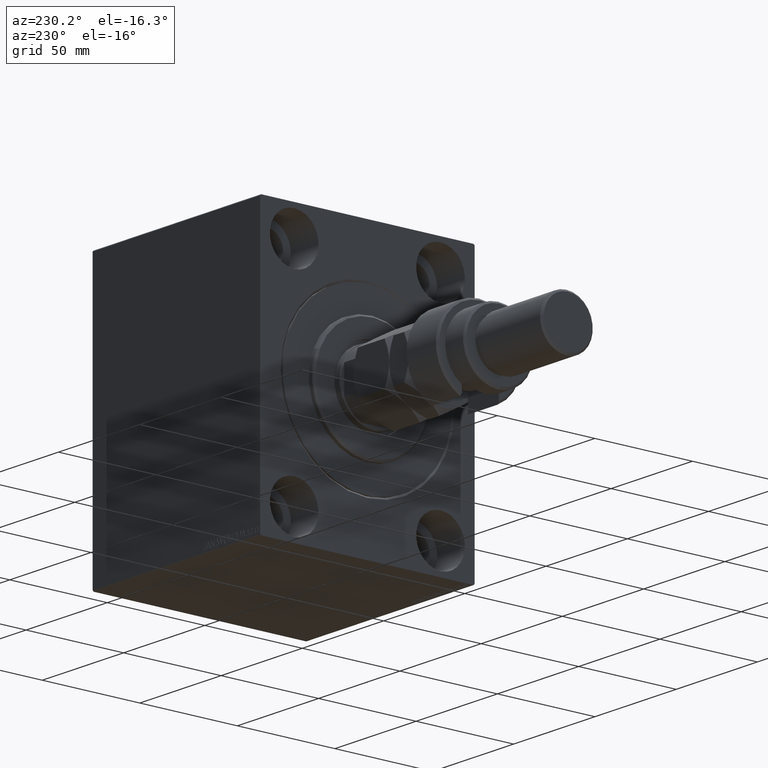
[diagram: clean part render]
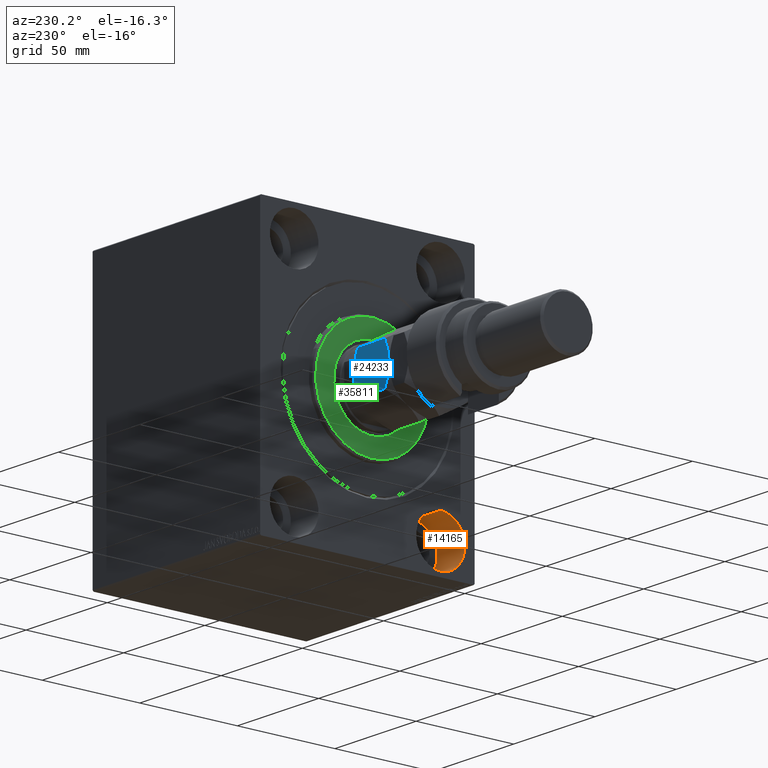
[diagram: same view with three faces highlighted in distinct colors, each labeled with its STEP entity id]
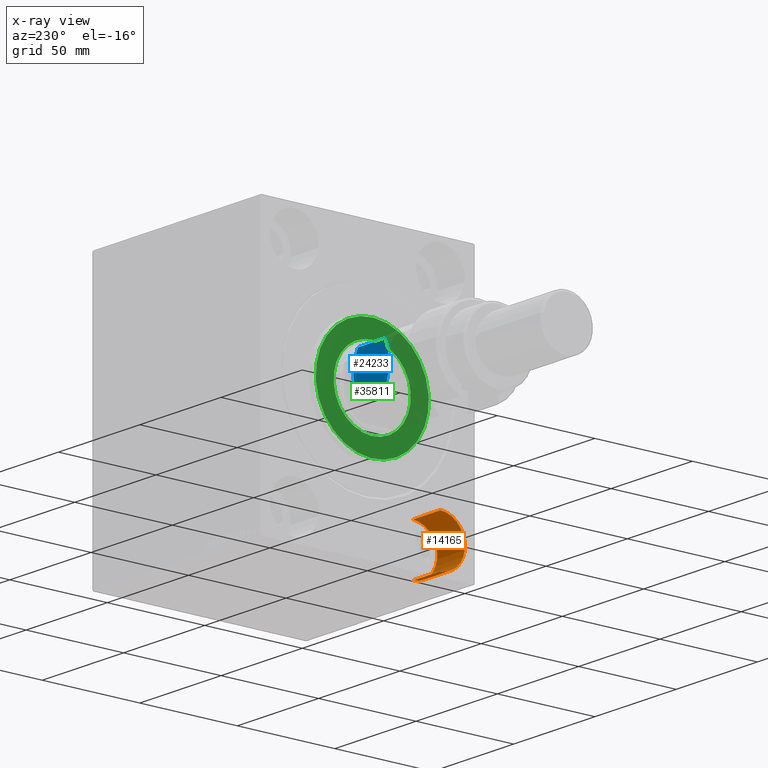
[diagram: x-ray of the same camera — body ghosted, the three highlighted faces saturated]
A machine part, auxiliary view with three faces highlighted in distinct colors.
The next image is the same camera in x-ray (body ghosted, the three faces saturated) — at least one of them is partly hidden behind the body in this view.
Their STEP definitions:

[orange] entity #14165 — the highlighted cylindrical surface (edge-blend (fillet) strip) has radius 12.5 mm, axis along (-1, -0, -0).
#2295 = LINE ( 'NONE', #2757, #7751 ) ;
#2677 = CARTESIAN_POINT ( 'NONE',  ( 0.000000000000000000, -37.50000000000002132, -42.49999999999999289 ) ) ;
#2757 = CARTESIAN_POINT ( 'NONE',  ( 17.00000000000000000, -37.50000000000002132, -42.49999999999999289 ) ) ;
#3594 = DIRECTION ( 'NONE',  ( 0.000000000000000000, 0.000000000000000000, 1.000000000000000000 ) ) ;
#4704 = LINE ( 'NONE', #29709, #22898 ) ;
#5178 = VERTEX_POINT ( 'NONE', #2677 ) ;
#7134 = CARTESIAN_POINT ( 'NONE',  ( 17.00000000000000000, -37.50000000000002132, -54.99999999999999289 ) ) ;
#7530 = CIRCLE ( 'NONE', #18098, 12.49999999999999645 ) ;
#7751 = VECTOR ( 'NONE', #9391, 1000.000000000000000 ) ;
#7786 = ORIENTED_EDGE ( 'NONE', *, *, #28862, .T. ) ;
#7905 = ORIENTED_EDGE ( 'NONE', *, *, #15969, .T. ) ;
#9391 = DIRECTION ( 'NONE',  ( -1.000000000000000000, -0.000000000000000000, -0.000000000000000000 ) ) ;
#12006 = DIRECTION ( 'NONE',  ( -1.000000000000000000, -0.000000000000000000, -0.000000000000000000 ) ) ;
#14165 = ADVANCED_FACE ( 'NONE', ( #24376 ), #24839, .F. ) ;
#14997 = ORIENTED_EDGE ( 'NONE', *, *, #43908, .F. ) ;
#15825 = AXIS2_PLACEMENT_3D ( 'NONE', #7134, #28611, #3594 ) ;
#15907 = DIRECTION ( 'NONE',  ( -1.000000000000000000, 0.000000000000000000, 0.000000000000000000 ) ) ;
#15928 = ORIENTED_EDGE ( 'NONE', *, *, #22818, .F. ) ;
#15969 = EDGE_CURVE ( 'NONE', #37162, #5178, #7530, .T. ) ;
#18098 = AXIS2_PLACEMENT_3D ( 'NONE', #19240, #23258, #29617 ) ;
#18181 = VERTEX_POINT ( 'NONE', #28580 ) ;
#18711 = EDGE_LOOP ( 'NONE', ( #14997, #7786, #7905, #15928 ) ) ;
#19240 = CARTESIAN_POINT ( 'NONE',  ( 0.000000000000000000, -37.50000000000002132, -54.99999999999999289 ) ) ;
#22818 = EDGE_CURVE ( 'NONE', #37339, #5178, #2295, .T. ) ;
#22898 = VECTOR ( 'NONE', #12006, 1000.000000000000000 ) ;
#23258 = DIRECTION ( 'NONE',  ( -1.000000000000000000, 0.000000000000000000, 0.000000000000000000 ) ) ;
#24376 = FACE_OUTER_BOUND ( 'NONE', #18711, .T. ) ;
#24839 = CYLINDRICAL_SURFACE ( 'NONE', #15825, 12.49999999999999645 ) ;
#28580 = CARTESIAN_POINT ( 'NONE',  ( 17.00000000000000000, -37.50000000000002132, -67.49999999999998579 ) ) ;
#28611 = DIRECTION ( 'NONE',  ( -1.000000000000000000, -0.000000000000000000, -0.000000000000000000 ) ) ;
#28862 = EDGE_CURVE ( 'NONE', #18181, #37162, #4704, .T. ) ;
#29617 = DIRECTION ( 'NONE',  ( 0.000000000000000000, 0.000000000000000000, 1.000000000000000000 ) ) ;
#29709 = CARTESIAN_POINT ( 'NONE',  ( 17.00000000000000000, -37.50000000000002132, -67.49999999999998579 ) ) ;
#29844 = CIRCLE ( 'NONE', #40398, 12.49999999999999645 ) ;
#30284 = DIRECTION ( 'NONE',  ( 0.000000000000000000, 0.000000000000000000, 1.000000000000000000 ) ) ;
#35439 = CARTESIAN_POINT ( 'NONE',  ( 0.000000000000000000, -37.50000000000002132, -67.49999999999998579 ) ) ;
#37162 = VERTEX_POINT ( 'NONE', #35439 ) ;
#37339 = VERTEX_POINT ( 'NONE', #39333 ) ;
#37388 = CARTESIAN_POINT ( 'NONE',  ( 17.00000000000000000, -37.50000000000002132, -54.99999999999999289 ) ) ;
#39333 = CARTESIAN_POINT ( 'NONE',  ( 17.00000000000000000, -37.50000000000002132, -42.49999999999999289 ) ) ;
#40398 = AXIS2_PLACEMENT_3D ( 'NONE', #37388, #15907, #30284 ) ;
#43908 = EDGE_CURVE ( 'NONE', #18181, #37339, #29844, .T. ) ;

[blue] entity #24233 — the highlighted planar face has unit normal (0, -1, 0).
#28 = FACE_OUTER_BOUND ( 'NONE', #2676, .T. ) ;
#560 = B_SPLINE_CURVE_WITH_KNOTS ( 'NONE', 3,
 ( #5574, #36973, #33416, #29637, #15954, #16188, #44281, #4632, #44976, #40506 ),
 .UNSPECIFIED., .F., .F.,
 ( 4, 2, 2, 2, 4 ),
 ( 2.544307986804616605E-07, 0.005386537354063081207, 0.008079678815695278543, 0.009426249546511375477, 0.01077282027732747414 ),
 .UNSPECIFIED. ) ;
#1288 = CARTESIAN_POINT ( 'NONE',  ( -5.858009779716798704, 17.40248616759157940, 21.65943689774472247 ) ) ;
#1827 = LINE ( 'NONE', #37942, #46218 ) ;
#2676 = EDGE_LOOP ( 'NONE', ( #18403, #42342, #42533, #40770, #30169, #32653 ) ) ;
#3395 = B_SPLINE_CURVE_WITH_KNOTS ( 'NONE', 3,
 ( #39937, #21773, #22244, #21309, #33084, #39482 ),
 .UNSPECIFIED., .F., .F.,
 ( 4, 2, 4 ),
 ( 0.01077282027732746027, 0.01612137750481872772, 0.02146993473230999691 ),
 .UNSPECIFIED. ) ;
#4632 = CARTESIAN_POINT ( 'NONE',  ( -9.790461530629869458, 15.13208409062670334, 0.01733285647409164854 ) ) ;
#4845 = CARTESIAN_POINT ( 'NONE',  ( -2.854601888853811165, 19.13650452186756468, 20.72261692211012374 ) ) ;
#5079 = CARTESIAN_POINT ( 'NONE',  ( -8.209538469370123437, 16.04483044561310479, 21.98266714352590157 ) ) ;
#5574 = CARTESIAN_POINT ( 'NONE',  ( -18.00000000000000000, 10.39230484541327115, 2.784609690826521433 ) ) ;
#9338 = CARTESIAN_POINT ( 'NONE',  ( -5.895697476400516557, 17.38072716576608912, 0.2763959071215859042 ) ) ;
#9835 = VERTEX_POINT ( 'NONE', #17410 ) ;
#10038 = AXIS2_PLACEMENT_3D ( 'NONE', #39466, #32381, #43469 ) ;
#10051 = B_SPLINE_CURVE_WITH_KNOTS ( 'NONE', 3,
 ( #12383, #37413, #4845, #29852, #1288, #44489, #37645, #5079, #14995, #29386 ),
 .UNSPECIFIED., .F., .F.,
 ( 4, 2, 2, 2, 4 ),
 ( 2.544307986817554504E-07, 0.005386537354063073400, 0.008079678815695268135, 0.009426249546511363334, 0.01077282027732746027 ),
 .UNSPECIFIED. ) ;
#10420 = EDGE_CURVE ( 'NONE', #32142, #11438, #3395, .T. ) ;
#11438 = VERTEX_POINT ( 'NONE', #42690 ) ;
#12383 = CARTESIAN_POINT ( 'NONE',  ( -2.339913671058857151E-16, 20.78460969082652454, 19.21539030917348256 ) ) ;
#12677 = VERTEX_POINT ( 'NONE', #13608 ) ;
#13111 = CARTESIAN_POINT ( 'NONE',  ( -2.860715810337960185, 19.13297464765287614, 1.272574701504242345 ) ) ;
#13608 = CARTESIAN_POINT ( 'NONE',  ( -18.00000000000000000, 10.39230484541327115, 2.784609690826521433 ) ) ;
#14995 = CARTESIAN_POINT ( 'NONE',  ( -8.605874323383762459, 15.81600583360882162, 21.99999999999999645 ) ) ;
#15954 = CARTESIAN_POINT ( 'NONE',  ( -12.14199022028319419, 13.77442836864822340, 0.3405631022552705334 ) ) ;
#16182 = VECTOR ( 'NONE', #43563, 1000.000000000000000 ) ;
#16188 = CARTESIAN_POINT ( 'NONE',  ( -10.97671975407794953, 14.44719758599054771, 0.1387225990985785085 ) ) ;
#16423 = CARTESIAN_POINT ( 'NONE',  ( -8.999999999999991118, 15.58845726811989785, 0.000000000000000000 ) ) ;
#16880 = CARTESIAN_POINT ( 'NONE',  ( -1.065242688631141971E-15, 20.78460969082652454, 2.784609690826513440 ) ) ;
#17410 = CARTESIAN_POINT ( 'NONE',  ( -1.065242688631141971E-15, 20.78460969082652454, 2.784609690826513440 ) ) ;
#18403 = ORIENTED_EDGE ( 'NONE', *, *, #23875, .F. ) ;
#20630 = B_SPLINE_CURVE_WITH_KNOTS ( 'NONE', 3,
 ( #16423, #31035, #9338, #13111, #30806, #16880 ),
 .UNSPECIFIED., .F., .F.,
 ( 4, 2, 4 ),
 ( 0.01077282027732747414, 0.01612137750481873466, 0.02146993473230999344 ),
 .UNSPECIFIED. ) ;
#21309 = CARTESIAN_POINT ( 'NONE',  ( -15.13928418966203004, 12.04393988858690889, 20.72742529849574566 ) ) ;
#21773 = CARTESIAN_POINT ( 'NONE',  ( -10.56546083169953221, 14.68463803553235714, 21.99999999999998934 ) ) ;
#22244 = CARTESIAN_POINT ( 'NONE',  ( -12.10430252359947545, 13.79618737047371013, 21.72360409287842131 ) ) ;
#23875 = EDGE_CURVE ( 'NONE', #12677, #28819, #560, .T. ) ;
#24233 = ADVANCED_FACE ( 'NONE', ( #28 ), #39237, .F. ) ;
#27642 = VERTEX_POINT ( 'NONE', #28140 ) ;
#28125 = EDGE_CURVE ( 'NONE', #28819, #9835, #20630, .T. ) ;
#28140 = CARTESIAN_POINT ( 'NONE',  ( -2.339913671058857151E-16, 20.78460969082652454, 19.21539030917348256 ) ) ;
#28819 = VERTEX_POINT ( 'NONE', #46495 ) ;
#29162 = CARTESIAN_POINT ( 'NONE',  ( 0.000000000000000000, 20.78460969082652454, 22.00000000000000000 ) ) ;
#29386 = CARTESIAN_POINT ( 'NONE',  ( -8.999999999999991118, 15.58845726811989785, 22.00000000000000000 ) ) ;
#29397 = LINE ( 'NONE', #29162, #16182 ) ;
#29637 = CARTESIAN_POINT ( 'NONE',  ( -12.90267270303526814, 13.33524813246347840, 0.5370855558290131837 ) ) ;
#29852 = CARTESIAN_POINT ( 'NONE',  ( -5.097327296964721199, 17.84166640377631552, 21.46291444417098759 ) ) ;
#30169 = ORIENTED_EDGE ( 'NONE', *, *, #37588, .T. ) ;
#30806 = CARTESIAN_POINT ( 'NONE',  ( -1.409696000463985355, 19.97072132548310108, 1.970721325483047570 ) ) ;
#31035 = CARTESIAN_POINT ( 'NONE',  ( -7.434539168300451806, 16.49227650070744389, 2.835866307407396746E-15 ) ) ;
#32142 = VERTEX_POINT ( 'NONE', #44026 ) ;
#32381 = DIRECTION ( 'NONE',  ( 0.4999999999999996114, -0.8660254037844388186, 0.000000000000000000 ) ) ;
#32653 = ORIENTED_EDGE ( 'NONE', *, *, #28125, .F. ) ;
#33084 = CARTESIAN_POINT ( 'NONE',  ( -16.59030399953601176, 11.20619321075669284, 20.02927867451694155 ) ) ;
#33416 = CARTESIAN_POINT ( 'NONE',  ( -15.14539811114618217, 12.04041001437223279, 1.277383077889873819 ) ) ;
#34852 = DIRECTION ( 'NONE',  ( -0.000000000000000000, -0.000000000000000000, -1.000000000000000000 ) ) ;
#36973 = CARTESIAN_POINT ( 'NONE',  ( -16.58866960374794530, 11.20713682960488811, 1.969777706634902259 ) ) ;
#37291 = EDGE_CURVE ( 'NONE', #11438, #12677, #1827, .T. ) ;
#37413 = CARTESIAN_POINT ( 'NONE',  ( -1.411330396252047148, 19.96977770663490404, 20.03022229336509952 ) ) ;
#37588 = EDGE_CURVE ( 'NONE', #27642, #9835, #29397, .T. ) ;
#37645 = CARTESIAN_POINT ( 'NONE',  ( -7.415748492146450488, 16.50312530264321254, 21.91305310988183663 ) ) ;
#37942 = CARTESIAN_POINT ( 'NONE',  ( -18.00000000000000000, 10.39230484541327293, 22.00000000000000000 ) ) ;
#39237 = PLANE ( 'NONE',  #10038 ) ;
#39466 = CARTESIAN_POINT ( 'NONE',  ( 0.000000000000000000, 20.78460969082652454, 22.00000000000000000 ) ) ;
#39482 = CARTESIAN_POINT ( 'NONE',  ( -18.00000000000000000, 10.39230484541327293, 19.21539030917347546 ) ) ;
#39937 = CARTESIAN_POINT ( 'NONE',  ( -8.999999999999991118, 15.58845726811989785, 22.00000000000000000 ) ) ;
#40506 = CARTESIAN_POINT ( 'NONE',  ( -8.999999999999991118, 15.58845726811989785, 0.000000000000000000 ) ) ;
#40770 = ORIENTED_EDGE ( 'NONE', *, *, #43840, .F. ) ;
#42342 = ORIENTED_EDGE ( 'NONE', *, *, #37291, .F. ) ;
#42533 = ORIENTED_EDGE ( 'NONE', *, *, #10420, .F. ) ;
#42690 = CARTESIAN_POINT ( 'NONE',  ( -18.00000000000000000, 10.39230484541327293, 19.21539030917347546 ) ) ;
#43469 = DIRECTION ( 'NONE',  ( 0.8660254037844388186, 0.4999999999999996114, 0.000000000000000000 ) ) ;
#43563 = DIRECTION ( 'NONE',  ( -0.000000000000000000, -0.000000000000000000, -1.000000000000000000 ) ) ;
#43840 = EDGE_CURVE ( 'NONE', #27642, #32142, #10051, .T. ) ;
#44026 = CARTESIAN_POINT ( 'NONE',  ( -8.999999999999991118, 15.58845726811989785, 22.00000000000000000 ) ) ;
#44281 = CARTESIAN_POINT ( 'NONE',  ( -10.58425150785354241, 14.67378923359659559, 0.08694689011815655288 ) ) ;
#44489 = CARTESIAN_POINT ( 'NONE',  ( -7.023280245922044251, 16.72971695024925509, 21.86127740090141458 ) ) ;
#44976 = CARTESIAN_POINT ( 'NONE',  ( -9.394125676616230436, 15.36090870263097941, 2.570744994916802318E-15 ) ) ;
#46218 = VECTOR ( 'NONE', #34852, 1000.000000000000000 ) ;
#46495 = CARTESIAN_POINT ( 'NONE',  ( -8.999999999999991118, 15.58845726811989785, 0.000000000000000000 ) ) ;

[green] entity #35811 — the highlighted planar face has unit normal (-1, 0, 0).
#409 = VERTEX_POINT ( 'NONE', #34566 ) ;
#1366 = DIRECTION ( 'NONE',  ( 0.000000000000000000, 0.000000000000000000, -1.000000000000000000 ) ) ;
#1596 = DIRECTION ( 'NONE',  ( -1.000000000000000000, 0.000000000000000000, -0.000000000000000000 ) ) ;
#3010 = AXIS2_PLACEMENT_3D ( 'NONE', #27946, #35722, #45657 ) ;
#5372 = DIRECTION ( 'NONE',  ( 0.000000000000000000, 0.000000000000000000, -1.000000000000000000 ) ) ;
#7968 = CARTESIAN_POINT ( 'NONE',  ( 3.000000000000000000, 0.000000000000000000, 0.000000000000000000 ) ) ;
#8700 = CARTESIAN_POINT ( 'NONE',  ( 3.000000000000000000, 0.000000000000000000, 0.000000000000000000 ) ) ;
#9044 = DIRECTION ( 'NONE',  ( 0.000000000000000000, 0.000000000000000000, -1.000000000000000000 ) ) ;
#9060 = AXIS2_PLACEMENT_3D ( 'NONE', #7968, #37473, #5372 ) ;
#11592 = DIRECTION ( 'NONE',  ( -1.000000000000000000, 0.000000000000000000, -0.000000000000000000 ) ) ;
#11611 = EDGE_CURVE ( 'NONE', #19706, #409, #42948, .T. ) ;
#11824 = CARTESIAN_POINT ( 'NONE',  ( 3.000000000000000000, 0.000000000000000000, 0.000000000000000000 ) ) ;
#12111 = CARTESIAN_POINT ( 'NONE',  ( 3.000000000000000000, 0.000000000000000000, 29.00000000000002132 ) ) ;
#14809 = ORIENTED_EDGE ( 'NONE', *, *, #15653, .T. ) ;
#15653 = EDGE_CURVE ( 'NONE', #409, #19706, #27891, .T. ) ;
#16230 = ORIENTED_EDGE ( 'NONE', *, *, #41008, .T. ) ;
#16918 = AXIS2_PLACEMENT_3D ( 'NONE', #45153, #31433, #9044 ) ;
#19143 = CIRCLE ( 'NONE', #36462, 19.75000000000000000 ) ;
#19706 = VERTEX_POINT ( 'NONE', #12111 ) ;
#21322 = EDGE_LOOP ( 'NONE', ( #16230, #32778 ) ) ;
#22994 = AXIS2_PLACEMENT_3D ( 'NONE', #8700, #1596, #1366 ) ;
#23431 = VERTEX_POINT ( 'NONE', #46703 ) ;
#26794 = EDGE_LOOP ( 'NONE', ( #32277, #14809 ) ) ;
#27891 = CIRCLE ( 'NONE', #9060, 29.00000000000002132 ) ;
#27946 = CARTESIAN_POINT ( 'NONE',  ( 3.000000000000000000, 0.000000000000000000, 0.000000000000000000 ) ) ;
#29750 = CARTESIAN_POINT ( 'NONE',  ( 3.000000000000000000, 0.000000000000000000, 19.75000000000000000 ) ) ;
#31433 = DIRECTION ( 'NONE',  ( 1.000000000000000000, -0.000000000000000000, 0.000000000000000000 ) ) ;
#32277 = ORIENTED_EDGE ( 'NONE', *, *, #11611, .T. ) ;
#32778 = ORIENTED_EDGE ( 'NONE', *, *, #34202, .T. ) ;
#34202 = EDGE_CURVE ( 'NONE', #23431, #39743, #19143, .T. ) ;
#34566 = CARTESIAN_POINT ( 'NONE',  ( 3.000000000000000000, 3.612708057484693181E-15, -29.00000000000002132 ) ) ;
#34754 = FACE_OUTER_BOUND ( 'NONE', #26794, .T. ) ;
#35722 = DIRECTION ( 'NONE',  ( 1.000000000000000000, -0.000000000000000000, 0.000000000000000000 ) ) ;
#35811 = ADVANCED_FACE ( 'NONE', ( #34754, #45618 ), #41841, .T. ) ;
#36462 = AXIS2_PLACEMENT_3D ( 'NONE', #11824, #11592, #44164 ) ;
#36526 = CIRCLE ( 'NONE', #22994, 19.75000000000000000 ) ;
#37473 = DIRECTION ( 'NONE',  ( 1.000000000000000000, -0.000000000000000000, 0.000000000000000000 ) ) ;
#39743 = VERTEX_POINT ( 'NONE', #29750 ) ;
#41008 = EDGE_CURVE ( 'NONE', #39743, #23431, #36526, .T. ) ;
#41841 = PLANE ( 'NONE',  #16918 ) ;
#42948 = CIRCLE ( 'NONE', #3010, 29.00000000000002132 ) ;
#44164 = DIRECTION ( 'NONE',  ( 0.000000000000000000, 0.000000000000000000, -1.000000000000000000 ) ) ;
#45153 = CARTESIAN_POINT ( 'NONE',  ( 3.000000000000000000, 0.000000000000000000, 0.000000000000000000 ) ) ;
#45618 = FACE_BOUND ( 'NONE', #21322, .T. ) ;
#45657 = DIRECTION ( 'NONE',  ( 0.000000000000000000, 0.000000000000000000, -1.000000000000000000 ) ) ;
#46703 = CARTESIAN_POINT ( 'NONE',  ( 3.000000000000000000, 2.418677428316022331E-15, -19.75000000000000000 ) ) ;